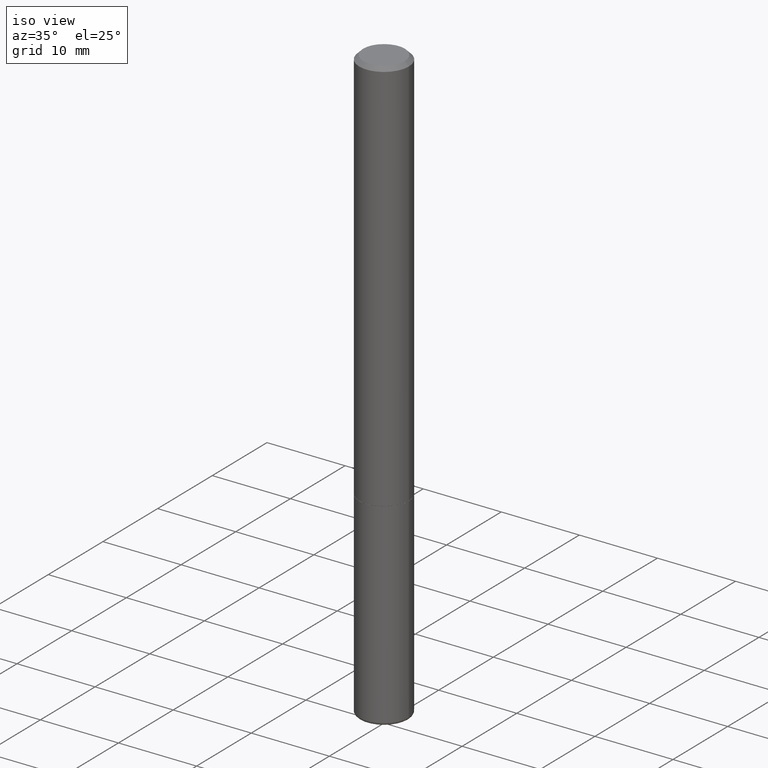
[diagram: clean part render]
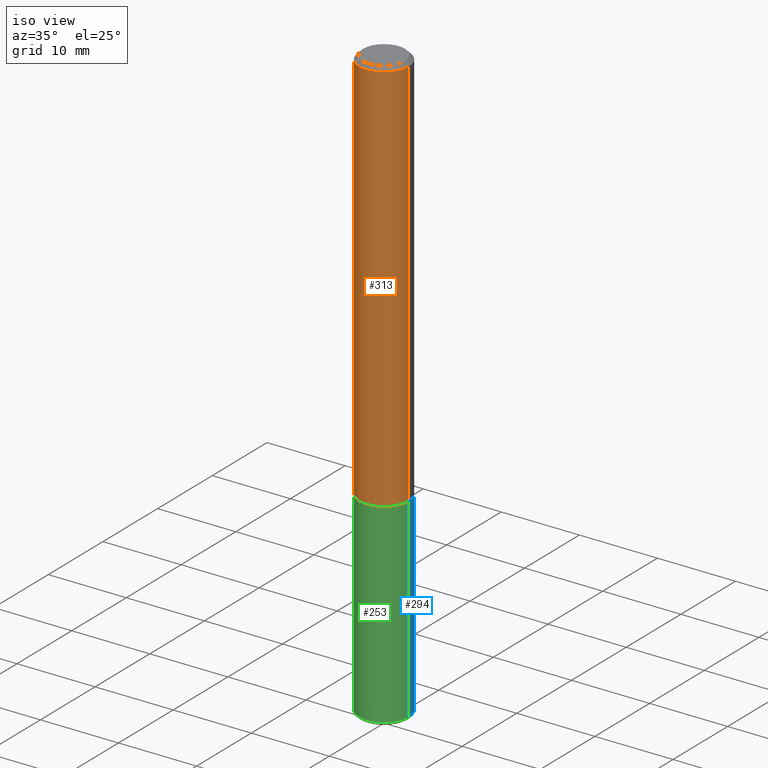
[diagram: same view with three faces highlighted in distinct colors, each labeled with its STEP entity id]
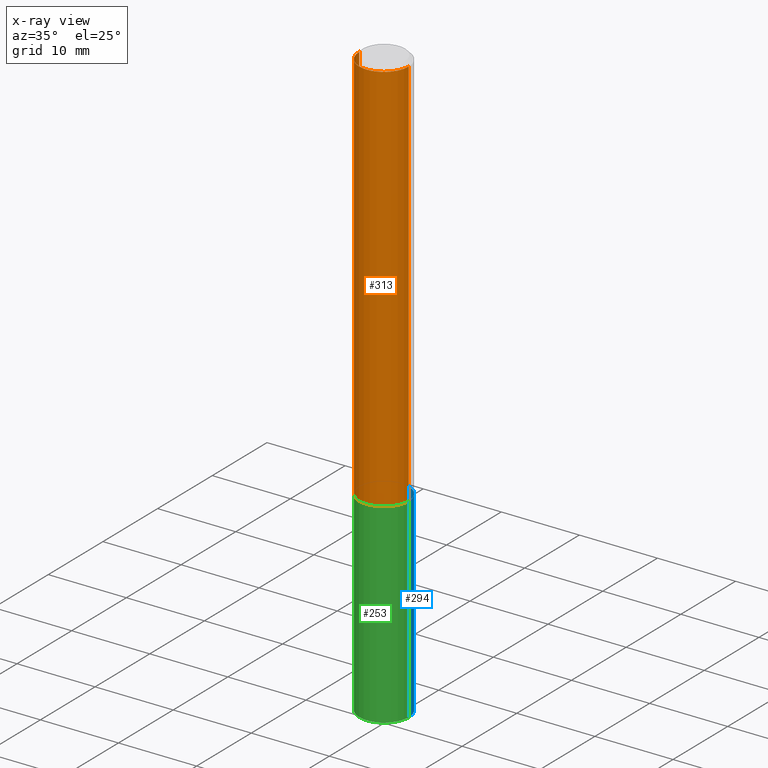
[diagram: x-ray of the same camera — body ghosted, the three highlighted faces saturated]
A machine part, iso view with three faces highlighted in distinct colors.
The next image is the same camera in x-ray (body ghosted, the three faces saturated) — at least one of them is partly hidden behind the body in this view.
Their STEP definitions:

[orange] entity #313 — the highlighted cylindrical surface (edge-blend (fillet) strip) has radius 3.175 mm, axis along (-0, 0, 1).
#4 = CARTESIAN_POINT ( 'NONE',  ( -0.1249999999999999584, 8.030407079339200406E-16, -0.02000000000000006287 ) ) ;
#8 = AXIS2_PLACEMENT_3D ( 'NONE', #389, #265, #112 ) ;
#23 = LINE ( 'NONE', #155, #53 ) ;
#25 = ORIENTED_EDGE ( 'NONE', *, *, #113, .F. ) ;
#28 = AXIS2_PLACEMENT_3D ( 'NONE', #184, #55, #117 ) ;
#51 = EDGE_CURVE ( 'NONE', #115, #320, #299, .T. ) ;
#53 = VECTOR ( 'NONE', #411, 39.37007874015748143 ) ;
#55 = DIRECTION ( 'NONE',  ( -2.445468806185136597E-29, 3.491481338843145583E-15, 1.000000000000000000 ) ) ;
#58 = ORIENTED_EDGE ( 'NONE', *, *, #336, .T. ) ;
#72 = CARTESIAN_POINT ( 'NONE',  ( 4.890937612370288923E-31, -6.982962677686312563E-17, -0.02000000000000006287 ) ) ;
#82 = VECTOR ( 'NONE', #237, 39.37007874015748143 ) ;
#99 = VERTEX_POINT ( 'NONE', #108 ) ;
#108 = CARTESIAN_POINT ( 'NONE',  ( 0.1249999999999999584, -9.273918764983043491E-16, -0.02000000000000006287 ) ) ;
#112 = DIRECTION ( 'NONE',  ( 1.000000000000000000, -6.982962677686266711E-15, 4.876176775795935232E-29 ) ) ;
#113 = EDGE_CURVE ( 'NONE', #251, #99, #335, .T. ) ;
#115 = VERTEX_POINT ( 'NONE', #190 ) ;
#117 = DIRECTION ( 'NONE',  ( 1.000000000000000000, -6.982962677686264344E-15, 0.000000000000000000 ) ) ;
#121 = ORIENTED_EDGE ( 'NONE', *, *, #51, .T. ) ;
#155 = CARTESIAN_POINT ( 'NONE',  ( -0.1250000000000001110, 8.881784197001260212E-16, -6.148668862818637832E-30 ) ) ;
#166 = CYLINDRICAL_SURFACE ( 'NONE', #8, 0.1250000000000001110 ) ;
#184 = CARTESIAN_POINT ( 'NONE',  ( 4.888492143564088712E-29, -6.979471196347448158E-15, -1.999000000000000110 ) ) ;
#190 = CARTESIAN_POINT ( 'NONE',  ( -0.1250000000000002776, -2.636471991862024185E-15, -1.999000000000000110 ) ) ;
#195 = DIRECTION ( 'NONE',  ( -2.445468806185136597E-29, 3.491481338843145583E-15, 1.000000000000000000 ) ) ;
#226 = CARTESIAN_POINT ( 'NONE',  ( 0.1250000000000001110, -8.728703347107841277E-16, 6.095220969744924646E-30 ) ) ;
#237 = DIRECTION ( 'NONE',  ( -2.445468806185136877E-29, 3.491481338843145188E-15, 1.000000000000000000 ) ) ;
#251 = VERTEX_POINT ( 'NONE', #4 ) ;
#256 = LINE ( 'NONE', #226, #82 ) ;
#265 = DIRECTION ( 'NONE',  ( -2.445468806185136597E-29, 3.491481338843145583E-15, 1.000000000000000000 ) ) ;
#288 = FACE_OUTER_BOUND ( 'NONE', #341, .T. ) ;
#299 = CIRCLE ( 'NONE', #28, 0.1250000000000002498 ) ;
#313 = ADVANCED_FACE ( 'NONE', ( #288 ), #166, .T. ) ;
#320 = VERTEX_POINT ( 'NONE', #395 ) ;
#324 = DIRECTION ( 'NONE',  ( 1.000000000000000000, -6.982962677686267499E-15, 0.000000000000000000 ) ) ;
#335 = CIRCLE ( 'NONE', #391, 0.1249999999999999584 ) ;
#336 = EDGE_CURVE ( 'NONE', #320, #99, #256, .T. ) ;
#341 = EDGE_LOOP ( 'NONE', ( #376, #121, #58, #25 ) ) ;
#353 = EDGE_CURVE ( 'NONE', #115, #251, #23, .T. ) ;
#376 = ORIENTED_EDGE ( 'NONE', *, *, #353, .F. ) ;
#389 = CARTESIAN_POINT ( 'NONE',  ( 0.000000000000000000, 0.000000000000000000, 0.000000000000000000 ) ) ;
#391 = AXIS2_PLACEMENT_3D ( 'NONE', #72, #195, #324 ) ;
#395 = CARTESIAN_POINT ( 'NONE',  ( 0.1250000000000002498, -7.852341531058233864E-15, -1.999000000000000110 ) ) ;
#411 = DIRECTION ( 'NONE',  ( -2.445468806185136877E-29, 3.491481338843145188E-15, 1.000000000000000000 ) ) ;

[blue] entity #294 — the highlighted cylindrical surface (edge-blend (fillet) strip) has radius 3.175 mm, axis along (-0, 0, 1).
#7 = CARTESIAN_POINT ( 'NONE',  ( 4.890937612370273754E-29, -6.982962677686291954E-15, -2.000000000000000444 ) ) ;
#18 = VERTEX_POINT ( 'NONE', #245 ) ;
#26 = VERTEX_POINT ( 'NONE', #56 ) ;
#31 = VERTEX_POINT ( 'NONE', #210 ) ;
#41 = DIRECTION ( 'NONE',  ( 1.000000000000000000, -6.982962677686266711E-15, 4.876176775795935793E-29 ) ) ;
#42 = CARTESIAN_POINT ( 'NONE',  ( -0.1250000000000000000, 8.881784197001252323E-16, -6.148668862818632227E-30 ) ) ;
#52 = VECTOR ( 'NONE', #228, 39.37007874015748143 ) ;
#56 = CARTESIAN_POINT ( 'NONE',  ( 0.1250000000000001943, -1.129494213115757459E-14, -2.984999999999999876 ) ) ;
#85 = EDGE_CURVE ( 'NONE', #26, #31, #304, .T. ) ;
#124 = EDGE_CURVE ( 'NONE', #18, #305, #358, .T. ) ;
#132 = ORIENTED_EDGE ( 'NONE', *, *, #85, .F. ) ;
#140 = DIRECTION ( 'NONE',  ( -2.445468806185136597E-29, 3.491481338843145583E-15, 1.000000000000000000 ) ) ;
#145 = AXIS2_PLACEMENT_3D ( 'NONE', #7, #357, #194 ) ;
#154 = EDGE_CURVE ( 'NONE', #26, #18, #158, .T. ) ;
#158 = CIRCLE ( 'NONE', #261, 0.1250000000000000000 ) ;
#159 = CYLINDRICAL_SURFACE ( 'NONE', #300, 0.1250000000000000000 ) ;
#178 = ORIENTED_EDGE ( 'NONE', *, *, #154, .T. ) ;
#194 = DIRECTION ( 'NONE',  ( 1.000000000000000000, -6.982962677686262766E-15, 0.000000000000000000 ) ) ;
#199 = FACE_OUTER_BOUND ( 'NONE', #408, .T. ) ;
#210 = CARTESIAN_POINT ( 'NONE',  ( 0.1250000000000000000, -7.855833012397075293E-15, -2.000000000000000444 ) ) ;
#219 = CIRCLE ( 'NONE', #145, 0.1250000000000000000 ) ;
#228 = DIRECTION ( 'NONE',  ( -2.445468806185136877E-29, 3.491481338843145188E-15, 1.000000000000000000 ) ) ;
#230 = CARTESIAN_POINT ( 'NONE',  ( 0.000000000000000000, 0.000000000000000000, 0.000000000000000000 ) ) ;
#245 = CARTESIAN_POINT ( 'NONE',  ( -0.1250000000000001943, -9.533893376746662859E-15, -2.984999999999999876 ) ) ;
#259 = CARTESIAN_POINT ( 'NONE',  ( -0.1250000000000000000, -7.814338817366416368E-15, -2.000000000000000444 ) ) ;
#261 = AXIS2_PLACEMENT_3D ( 'NONE', #286, #385, #291 ) ;
#262 = VECTOR ( 'NONE', #368, 39.37007874015748143 ) ;
#270 = CARTESIAN_POINT ( 'NONE',  ( 0.1250000000000000000, -8.728703347107833388E-16, 6.095220969744919741E-30 ) ) ;
#280 = ORIENTED_EDGE ( 'NONE', *, *, #124, .T. ) ;
#286 = CARTESIAN_POINT ( 'NONE',  ( 7.299724386462632472E-29, -1.042207179644678967E-14, -2.984999999999999876 ) ) ;
#291 = DIRECTION ( 'NONE',  ( 1.000000000000000000, -6.982962677686262766E-15, 0.000000000000000000 ) ) ;
#294 = ADVANCED_FACE ( 'NONE', ( #199 ), #159, .T. ) ;
#300 = AXIS2_PLACEMENT_3D ( 'NONE', #230, #140, #41 ) ;
#304 = LINE ( 'NONE', #270, #262 ) ;
#305 = VERTEX_POINT ( 'NONE', #259 ) ;
#351 = ORIENTED_EDGE ( 'NONE', *, *, #401, .F. ) ;
#357 = DIRECTION ( 'NONE',  ( -2.445468806185136597E-29, 3.491481338843145583E-15, 1.000000000000000000 ) ) ;
#358 = LINE ( 'NONE', #42, #52 ) ;
#368 = DIRECTION ( 'NONE',  ( -2.445468806185136877E-29, 3.491481338843145188E-15, 1.000000000000000000 ) ) ;
#385 = DIRECTION ( 'NONE',  ( -2.445468806185136597E-29, 3.491481338843145583E-15, 1.000000000000000000 ) ) ;
#401 = EDGE_CURVE ( 'NONE', #31, #305, #219, .T. ) ;
#408 = EDGE_LOOP ( 'NONE', ( #178, #280, #351, #132 ) ) ;

[green] entity #253 — the highlighted cylindrical surface (edge-blend (fillet) strip) has radius 3.175 mm, axis along (-0, 0, 1).
#6 = DIRECTION ( 'NONE',  ( 1.000000000000000000, -6.982962677686266711E-15, 4.876176775795935793E-29 ) ) ;
#12 = DIRECTION ( 'NONE',  ( 1.000000000000000000, -6.982962677686262766E-15, 0.000000000000000000 ) ) ;
#18 = VERTEX_POINT ( 'NONE', #245 ) ;
#26 = VERTEX_POINT ( 'NONE', #56 ) ;
#27 = CIRCLE ( 'NONE', #400, 0.1250000000000000000 ) ;
#31 = VERTEX_POINT ( 'NONE', #210 ) ;
#42 = CARTESIAN_POINT ( 'NONE',  ( -0.1250000000000000000, 8.881784197001252323E-16, -6.148668862818632227E-30 ) ) ;
#46 = EDGE_CURVE ( 'NONE', #18, #26, #203, .T. ) ;
#52 = VECTOR ( 'NONE', #228, 39.37007874015748143 ) ;
#56 = CARTESIAN_POINT ( 'NONE',  ( 0.1250000000000001943, -1.129494213115757459E-14, -2.984999999999999876 ) ) ;
#68 = AXIS2_PLACEMENT_3D ( 'NONE', #187, #354, #162 ) ;
#81 = EDGE_CURVE ( 'NONE', #305, #31, #27, .T. ) ;
#85 = EDGE_CURVE ( 'NONE', #26, #31, #304, .T. ) ;
#92 = EDGE_LOOP ( 'NONE', ( #314, #380, #128, #372 ) ) ;
#124 = EDGE_CURVE ( 'NONE', #18, #305, #358, .T. ) ;
#128 = ORIENTED_EDGE ( 'NONE', *, *, #85, .T. ) ;
#131 = AXIS2_PLACEMENT_3D ( 'NONE', #325, #233, #6 ) ;
#137 = FACE_OUTER_BOUND ( 'NONE', #92, .T. ) ;
#162 = DIRECTION ( 'NONE',  ( 1.000000000000000000, -6.982962677686262766E-15, 0.000000000000000000 ) ) ;
#176 = DIRECTION ( 'NONE',  ( -2.445468806185136597E-29, 3.491481338843145583E-15, 1.000000000000000000 ) ) ;
#187 = CARTESIAN_POINT ( 'NONE',  ( 7.299724386462632472E-29, -1.042207179644678967E-14, -2.984999999999999876 ) ) ;
#203 = CIRCLE ( 'NONE', #68, 0.1250000000000000000 ) ;
#210 = CARTESIAN_POINT ( 'NONE',  ( 0.1250000000000000000, -7.855833012397075293E-15, -2.000000000000000444 ) ) ;
#228 = DIRECTION ( 'NONE',  ( -2.445468806185136877E-29, 3.491481338843145188E-15, 1.000000000000000000 ) ) ;
#233 = DIRECTION ( 'NONE',  ( -2.445468806185136597E-29, 3.491481338843145583E-15, 1.000000000000000000 ) ) ;
#245 = CARTESIAN_POINT ( 'NONE',  ( -0.1250000000000001943, -9.533893376746662859E-15, -2.984999999999999876 ) ) ;
#253 = ADVANCED_FACE ( 'NONE', ( #137 ), #258, .T. ) ;
#258 = CYLINDRICAL_SURFACE ( 'NONE', #131, 0.1250000000000000000 ) ;
#259 = CARTESIAN_POINT ( 'NONE',  ( -0.1250000000000000000, -7.814338817366416368E-15, -2.000000000000000444 ) ) ;
#262 = VECTOR ( 'NONE', #368, 39.37007874015748143 ) ;
#270 = CARTESIAN_POINT ( 'NONE',  ( 0.1250000000000000000, -8.728703347107833388E-16, 6.095220969744919741E-30 ) ) ;
#304 = LINE ( 'NONE', #270, #262 ) ;
#305 = VERTEX_POINT ( 'NONE', #259 ) ;
#314 = ORIENTED_EDGE ( 'NONE', *, *, #124, .F. ) ;
#325 = CARTESIAN_POINT ( 'NONE',  ( 0.000000000000000000, 0.000000000000000000, 0.000000000000000000 ) ) ;
#331 = CARTESIAN_POINT ( 'NONE',  ( 4.890937612370273754E-29, -6.982962677686291954E-15, -2.000000000000000444 ) ) ;
#354 = DIRECTION ( 'NONE',  ( -2.445468806185136597E-29, 3.491481338843145583E-15, 1.000000000000000000 ) ) ;
#358 = LINE ( 'NONE', #42, #52 ) ;
#368 = DIRECTION ( 'NONE',  ( -2.445468806185136877E-29, 3.491481338843145188E-15, 1.000000000000000000 ) ) ;
#372 = ORIENTED_EDGE ( 'NONE', *, *, #81, .F. ) ;
#380 = ORIENTED_EDGE ( 'NONE', *, *, #46, .T. ) ;
#400 = AXIS2_PLACEMENT_3D ( 'NONE', #331, #176, #12 ) ;